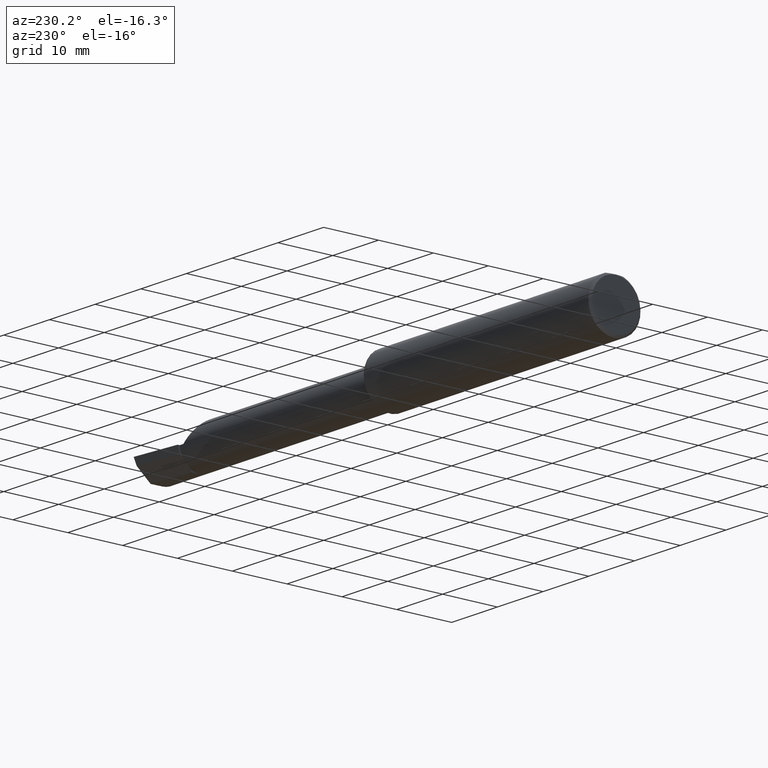
[diagram: clean part render]
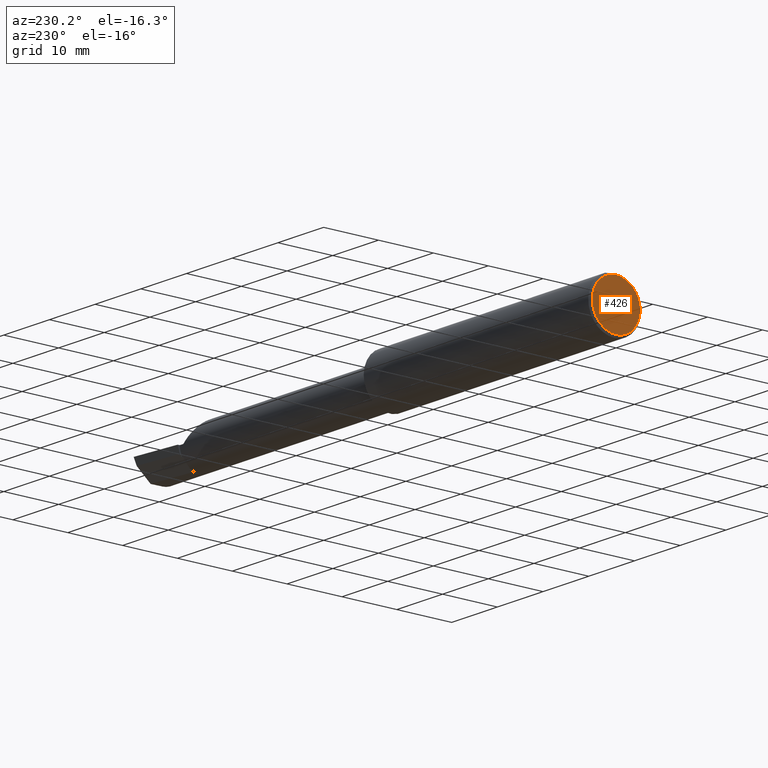
[diagram: same view with one face highlighted and labeled with its STEP entity id]
A machine part, auxiliary view. The second image highlights one B-rep face of the part: STEP entity #426.
In plain terms, the highlighted planar face has unit normal (1, 0, 0).
Its self-contained STEP definition (entity closure, byte-faithful):
#2 = ORIENTED_EDGE ( 'NONE', *, *, #525, .T. ) ;
#109 = ORIENTED_EDGE ( 'NONE', *, *, #284, .T. ) ;
#122 = CIRCLE ( 'NONE', #517, 0.1723499999999996424 ) ;
#140 = DIRECTION ( 'NONE',  ( 0.000000000000000000, 0.000000000000000000, 1.000000000000000000 ) ) ;
#149 = CARTESIAN_POINT ( 'NONE',  ( 0.000000000000000000, 0.000000000000000000, 0.000000000000000000 ) ) ;
#179 = CARTESIAN_POINT ( 'NONE',  ( 0.000000000000000000, 0.000000000000000000, 0.000000000000000000 ) ) ;
#207 = AXIS2_PLACEMENT_3D ( 'NONE', #179, #618, #570 ) ;
#281 = EDGE_LOOP ( 'NONE', ( #109, #2 ) ) ;
#284 = EDGE_CURVE ( 'NONE', #562, #505, #439, .T. ) ;
#287 = DIRECTION ( 'NONE',  ( -1.000000000000000000, -0.000000000000000000, -0.000000000000000000 ) ) ;
#343 = DIRECTION ( 'NONE',  ( -1.000000000000000000, -0.000000000000000000, -0.000000000000000000 ) ) ;
#359 = AXIS2_PLACEMENT_3D ( 'NONE', #149, #287, #140 ) ;
#410 = FACE_OUTER_BOUND ( 'NONE', #281, .T. ) ;
#426 = ADVANCED_FACE ( 'NONE', ( #410 ), #560, .F. ) ;
#428 = DIRECTION ( 'NONE',  ( 0.000000000000000000, 0.000000000000000000, 1.000000000000000000 ) ) ;
#430 = CARTESIAN_POINT ( 'NONE',  ( 0.000000000000000000, 2.202527268266512578E-17, 0.1723499999999996424 ) ) ;
#439 = CIRCLE ( 'NONE', #359, 0.1723499999999996424 ) ;
#505 = VERTEX_POINT ( 'NONE', #430 ) ;
#517 = AXIS2_PLACEMENT_3D ( 'NONE', #625, #343, #428 ) ;
#525 = EDGE_CURVE ( 'NONE', #505, #562, #122, .T. ) ;
#530 = CARTESIAN_POINT ( 'NONE',  ( 0.000000000000000000, 0.000000000000000000, -0.1723499999999996424 ) ) ;
#560 = PLANE ( 'NONE',  #207 ) ;
#562 = VERTEX_POINT ( 'NONE', #530 ) ;
#570 = DIRECTION ( 'NONE',  ( 0.000000000000000000, 0.000000000000000000, -1.000000000000000000 ) ) ;
#618 = DIRECTION ( 'NONE',  ( 1.000000000000000000, 0.000000000000000000, 0.000000000000000000 ) ) ;
#625 = CARTESIAN_POINT ( 'NONE',  ( 0.000000000000000000, 0.000000000000000000, 0.000000000000000000 ) ) ;